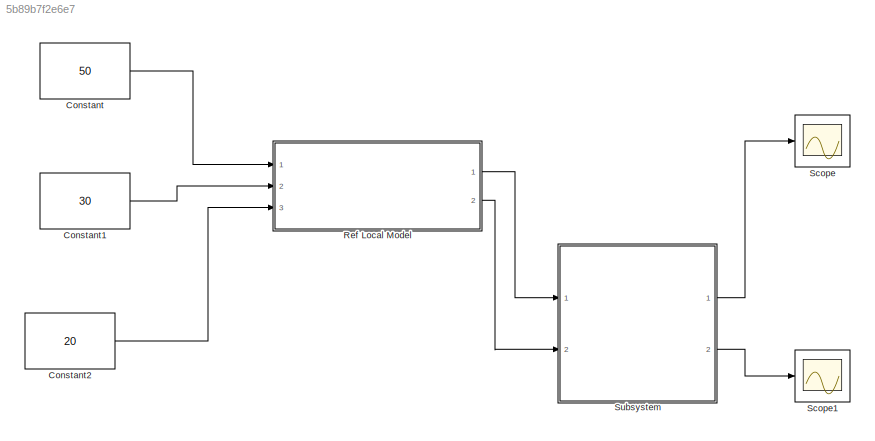
MODEL slx_5b89b7f2e6e7
KIND model
CONFIG AbsTol = auto
CONFIG EnableMultiTasking = off
CONFIG FixedStep = auto
CONFIG MaxStep = auto
CONFIG MinStep = auto
CONFIG RelTol = 1e-3
CONFIG SampleTimeConstraint = Unconstrained
CONFIG SolverName = VariableStepAuto
CONFIG StartTime = 0.0
CONFIG StopTime = 10.0
BLOCK [Constant] Constant
  Value = 50
BLOCK [Constant] Constant1
  Value = 30
BLOCK [Constant] Constant2
  Value = 20
BLOCK [ModelReference] Ref Local Model
  ModelNameDialog = vdp_Local2.slx
  ModelReferenceVersion = 1.3
  Ports = [3, 2]
BLOCK [Scope] Scope
  Floating = off
  NumInputPorts = 1
  Ports = [1]
  ScopeSpecificationString = Simulink.scopes.TimeScopeBlockCfg('CurrentConfiguration', extmgr.ConfigurationSet(extmgr.Configuration('Core','General UI',true),extmgr.Configuration('Core','Source UI',true),extmgr.Configuration('Sources','WiredSimulink',true),extmgr.Configuration('Visuals','Time Domain',true,'SerializedDisplays',{struct('MinYLimReal','800.00000','MaxYLimReal','1000.00000','YLabelReal','','MinYLimMag','800.00000'...<+1382ch>
BLOCK [Scope] Scope1
  Floating = off
  NumInputPorts = 1
  Ports = [1]
  ScopeSpecificationString = Simulink.scopes.TimeScopeBlockCfg('CurrentConfiguration', extmgr.ConfigurationSet(extmgr.Configuration('Core','General UI',true),extmgr.Configuration('Core','Source UI',true),extmgr.Configuration('Sources','WiredSimulink',true,'DataLoggingVariableName','ScopeData1'),extmgr.Configuration('Visuals','Time Domain',true,'SerializedDisplays',{struct('MinYLimReal','80.00000','MaxYLimReal','280.00000','YL...<+1414ch>
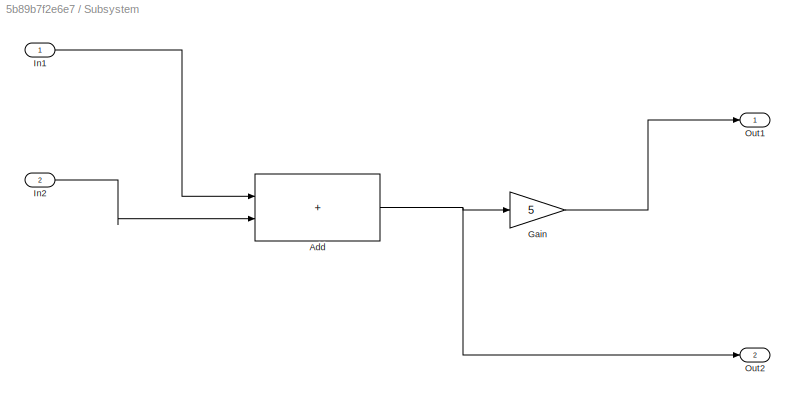
BLOCK [SubSystem] Subsystem
  Ports = [2, 2]
  RequestExecContextInheritance = off
BLOCK [Sum] Subsystem/Add
  IconShape = rectangular
  Ports = [2, 1]
BLOCK [Gain] Subsystem/Gain
  Gain = 5
BLOCK [Inport] Subsystem/In1
BLOCK [Inport] Subsystem/In2
  Port = 2
BLOCK [Outport] Subsystem/Out1
BLOCK [Outport] Subsystem/Out2
  Port = 2
LINE Constant1:1 -> Ref Local Model:2
LINE Constant2:1 -> Ref Local Model:3
LINE Constant:1 -> Ref Local Model:1
LINE Ref Local Model:1 -> Subsystem:1
LINE Ref Local Model:2 -> Subsystem:2
NET Subsystem/Add:1 -> Subsystem/Gain:1, Subsystem/Out2:1
LINE Subsystem/Gain:1 -> Subsystem/Out1:1
LINE Subsystem/In1:1 -> Subsystem/Add:1
LINE Subsystem/In2:1 -> Subsystem/Add:2
LINE Subsystem:1 -> Scope:1
LINE Subsystem:2 -> Scope1:1
note: NET lines group one-source signal fan-out (src -> all destinations, sorted); 1:1 wires keep LINE
